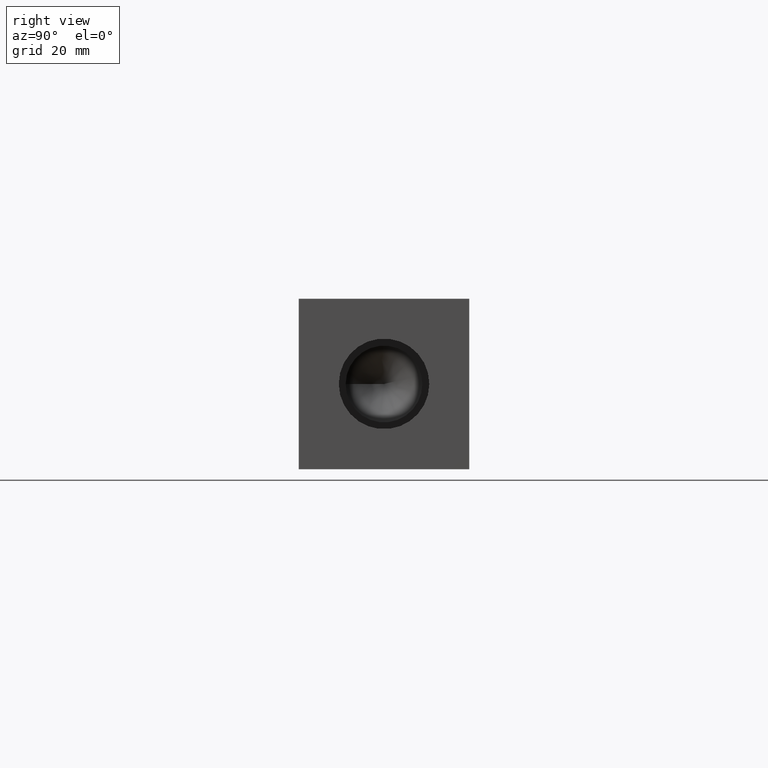
[diagram: clean part render]
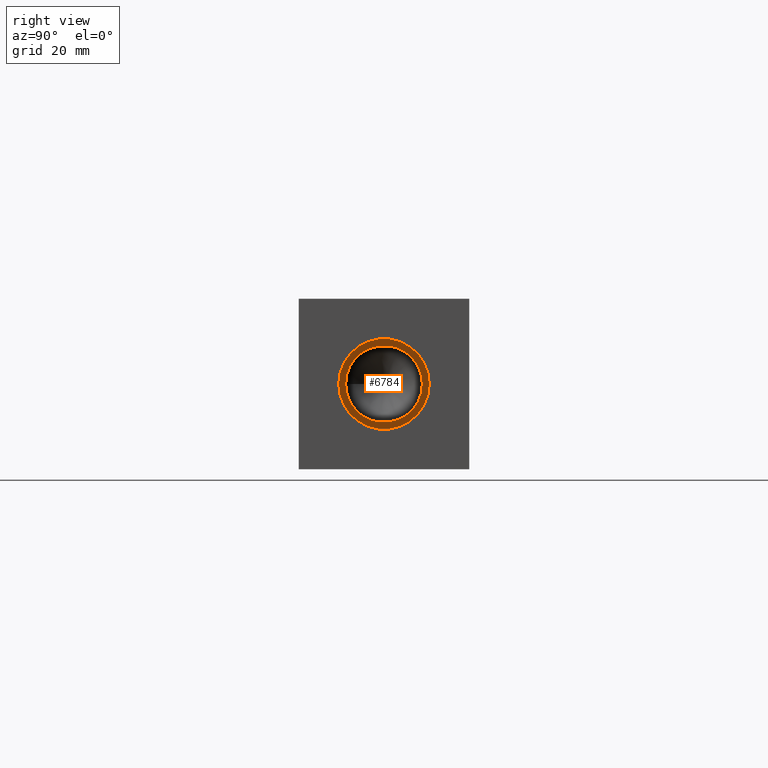
[diagram: same view with one face highlighted and labeled with its STEP entity id]
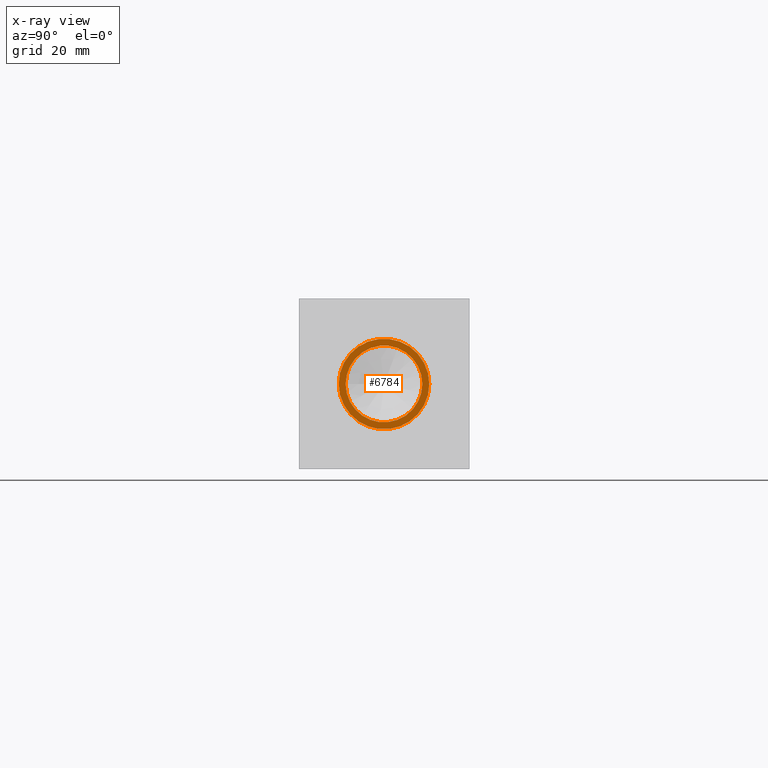
[diagram: x-ray of the same camera — body ghosted, the highlighted face saturated]
A machine part, right view. The second image highlights one B-rep face of the part: STEP entity #6784.
The next image is the same camera in x-ray: the body ghosted, the highlighted face saturated — about 0% of this face is hidden behind the body in this view.
In plain terms, the highlighted planar face has unit normal (1, 0, 0).
Its self-contained STEP definition (entity closure, byte-faithful):
#80=CIRCLE('',#7088,16.8529);
#81=CIRCLE('',#7089,16.8529);
#82=CIRCLE('',#7090,14.2875);
#127=FACE_BOUND('',#1065,.T.);
#352=PLANE('',#7087);
#688=FACE_OUTER_BOUND('',#1064,.T.);
#1064=EDGE_LOOP('',(#5994,#5995));
#1065=EDGE_LOOP('',(#5996));
#3254=VERTEX_POINT('',#11478);
#3255=VERTEX_POINT('',#11479);
#3256=VERTEX_POINT('',#11482);
#4176=EDGE_CURVE('',#3254,#3255,#80,.T.);
#4177=EDGE_CURVE('',#3255,#3254,#81,.T.);
#4178=EDGE_CURVE('',#3256,#3256,#82,.T.);
#5994=ORIENTED_EDGE('',*,*,#4176,.T.);
#5995=ORIENTED_EDGE('',*,*,#4177,.T.);
#5996=ORIENTED_EDGE('',*,*,#4178,.F.);
#6784=ADVANCED_FACE('',(#688,#127),#352,.T.);
#7087=AXIS2_PLACEMENT_3D('',#11477,#8338,#8339);
#7088=AXIS2_PLACEMENT_3D('',#11480,#8340,#8341);
#7089=AXIS2_PLACEMENT_3D('',#11481,#8342,#8343);
#7090=AXIS2_PLACEMENT_3D('',#11483,#8344,#8345);
#8338=DIRECTION('center_axis',(1.,0.,0.));
#8339=DIRECTION('ref_axis',(0.,1.,0.));
#8340=DIRECTION('center_axis',(1.,0.,0.));
#8341=DIRECTION('ref_axis',(0.,1.,0.));
#8342=DIRECTION('center_axis',(1.,0.,0.));
#8343=DIRECTION('ref_axis',(0.,1.,0.));
#8344=DIRECTION('center_axis',(1.,0.,0.));
#8345=DIRECTION('ref_axis',(0.,1.,0.));
#11477=CARTESIAN_POINT('Origin',(238.1758,31.75,31.75));
#11478=CARTESIAN_POINT('',(238.1758,48.6029,31.75));
#11479=CARTESIAN_POINT('',(238.1758,14.8971,31.75));
#11480=CARTESIAN_POINT('Origin',(238.1758,31.75,31.75));
#11481=CARTESIAN_POINT('Origin',(238.1758,31.75,31.75));
#11482=CARTESIAN_POINT('',(238.1758,17.4625,31.75));
#11483=CARTESIAN_POINT('Origin',(238.1758,31.75,31.75));